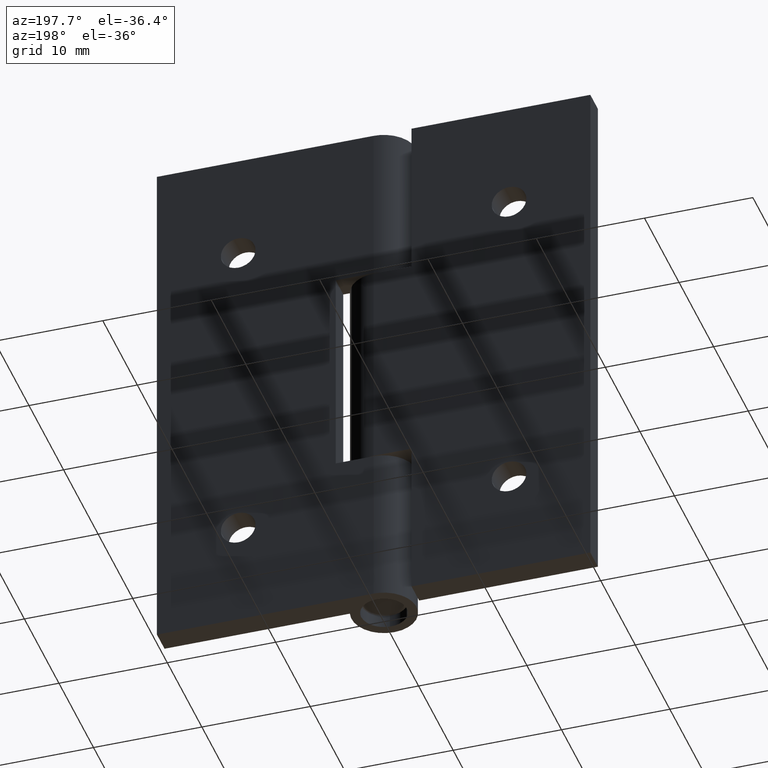
[diagram: clean part render]
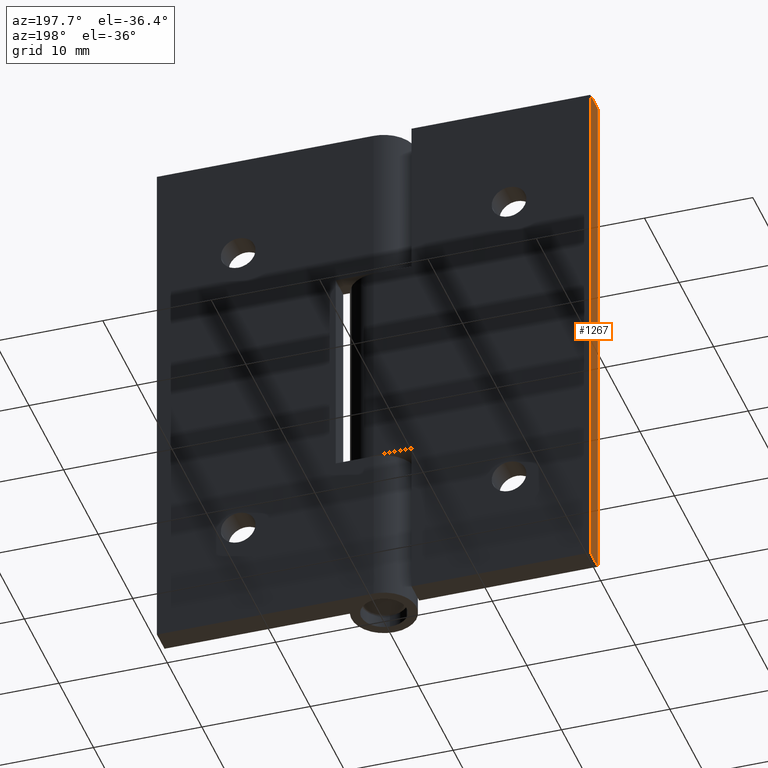
[diagram: same view with one face highlighted and labeled with its STEP entity id]
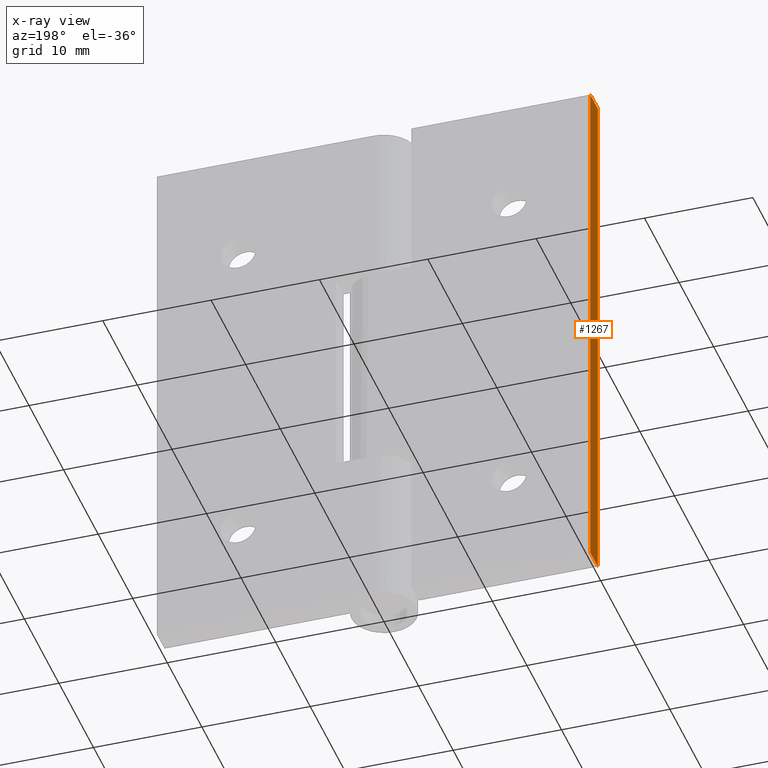
[diagram: x-ray of the same camera — body ghosted, the highlighted face saturated]
A machine part, auxiliary view. The second image highlights one B-rep face of the part: STEP entity #1267.
The next image is the same camera in x-ray: the body ghosted, the highlighted face saturated — about 0% of this face is hidden behind the body in this view.
In plain terms, the highlighted face is a freeform B-spline surface patch.
Its self-contained STEP definition (entity closure, byte-faithful):
#1161=CARTESIAN_POINT('',(-20.0,0.799999999999990,0.0));
#1162=VERTEX_POINT('',#1161);
#1168=CARTESIAN_POINT('',(-20.0,3.0,0.0));
#1169=VERTEX_POINT('',#1168);
#1170=CARTESIAN_POINT('',(-20.0,3.0,0.0));
#1171=CARTESIAN_POINT('',(-20.0,0.799999999999990,0.0));
#1172=QUASI_UNIFORM_CURVE('',1,(#1170,#1171),.UNSPECIFIED.,.F.,.U.);
#1173=EDGE_CURVE('',#1169,#1162,#1172,.T.);
#1188=CARTESIAN_POINT('',(-20.0,0.799999999999990,50.0));
#1189=VERTEX_POINT('',#1188);
#1196=CARTESIAN_POINT('',(-20.0,3.0,50.0));
#1197=VERTEX_POINT('',#1196);
#1203=CARTESIAN_POINT('',(-20.0,3.0,50.0));
#1204=CARTESIAN_POINT('',(-20.0,0.799999999999990,50.0));
#1205=QUASI_UNIFORM_CURVE('',1,(#1203,#1204),.UNSPECIFIED.,.F.,.U.);
#1206=EDGE_CURVE('',#1197,#1189,#1205,.T.);
#1248=CARTESIAN_POINT('',(-20.0,0.690110004264017,52.497499903090286));
#1249=CARTESIAN_POINT('',(-20.0,0.690110004264017,-2.497501244194806));
#1250=CARTESIAN_POINT('',(-20.0,3.109890054744573,52.497499903090301));
#1251=CARTESIAN_POINT('',(-20.0,3.109890054744573,-2.497501244194806));
#1252=B_SPLINE_SURFACE_WITH_KNOTS('',1,1,((#1248,#1250),(#1249,#1251)),.UNSPECIFIED.,.F.,.F.,.U.,(2,2),(2,2),(0.0,54.995001147285109),(0.0,2.419780050480556),.UNSPECIFIED.);
#1253=ORIENTED_EDGE('',*,*,#1173,.T.);
#1254=CARTESIAN_POINT('',(-20.0,0.799999999999990,50.0));
#1255=CARTESIAN_POINT('',(-20.0,0.799999999999990,0.0));
#1256=QUASI_UNIFORM_CURVE('',1,(#1254,#1255),.UNSPECIFIED.,.F.,.U.);
#1257=EDGE_CURVE('',#1189,#1162,#1256,.T.);
#1258=ORIENTED_EDGE('',*,*,#1257,.F.);
#1259=ORIENTED_EDGE('',*,*,#1206,.F.);
#1260=CARTESIAN_POINT('',(-20.0,3.0,50.0));
#1261=CARTESIAN_POINT('',(-20.0,3.0,0.0));
#1262=QUASI_UNIFORM_CURVE('',1,(#1260,#1261),.UNSPECIFIED.,.F.,.U.);
#1263=EDGE_CURVE('',#1197,#1169,#1262,.T.);
#1264=ORIENTED_EDGE('',*,*,#1263,.T.);
#1265=EDGE_LOOP('',(#1253,#1258,#1259,#1264));
#1266=FACE_OUTER_BOUND('',#1265,.T.);
#1267=ADVANCED_FACE('',(#1266),#1252,.F.);